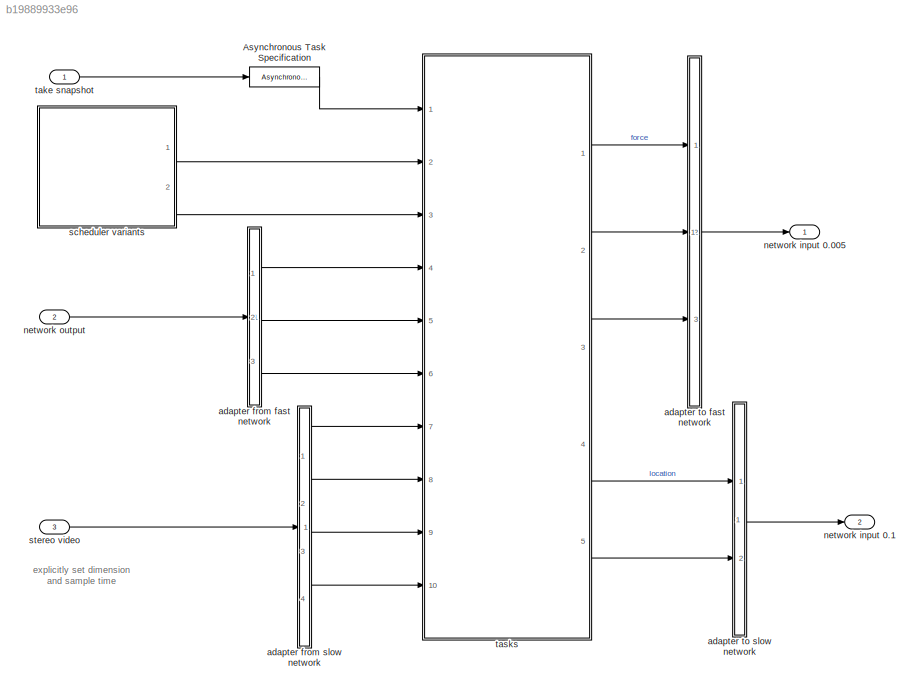
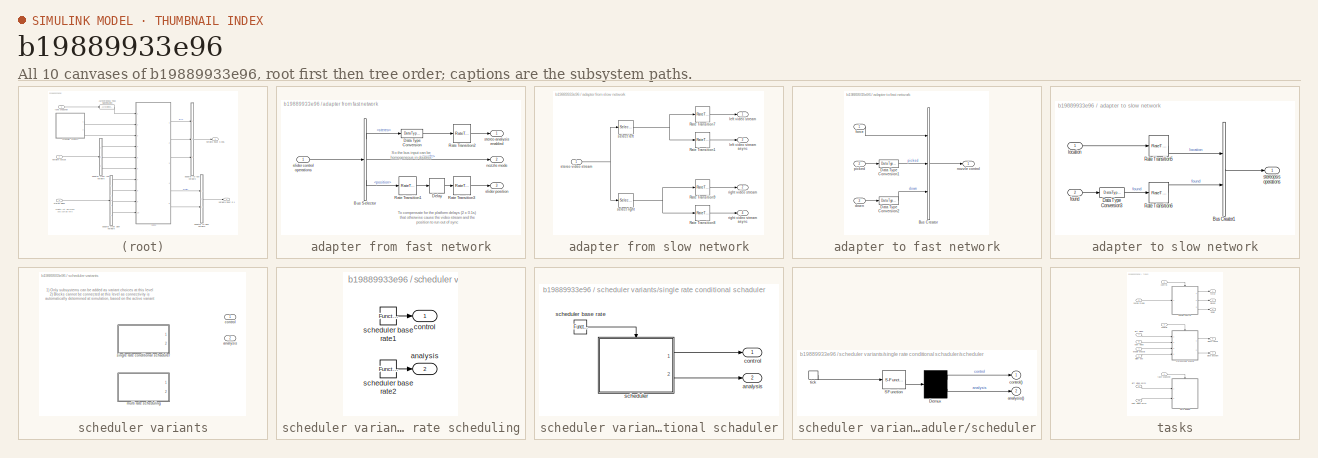
[diagram: thumbnail index - all 10 canvases of the model, root first then tree order]
MODEL slx_b19889933e96
KIND model
WORKSPACE source: MAT-file member
WORKSPACE ini_block_hpos = -0.4
BLOCK [AsynchronousTaskSpecification] Asynchronous Task Specification
  TaskPriority = 5
BLOCK [SubSystem] adapter from fast network
  FunctionWithSeparateData = off
  MaskHideContents = off
  MinAlgLoopOccurrences = off
  Opaque = off
  Ports = [1, 3]
  PropExecContextOutsideSubsystem = off
  RTWSystemCode = Auto
  RequestExecContextInheritance = off
BLOCK [BusSelector] adapter from fast network/Bus Selector
  OutputSignals = stereo,mode,position
  Ports = [1, 3]
BLOCK [DataTypeConversion] adapter from fast network/Data Type Conversion
  OutDataTypeStr = boolean
  RndMeth = Floor
  SaturateOnIntegerOverflow = off
BLOCK [Delay] adapter from fast network/Delay
  InputPortMap = u0
  Ports = [1, 1]
  SampleTime = 0.1
BLOCK [RateTransition] adapter from fast network/Rate Transition1
  Deterministic = off
BLOCK [RateTransition] adapter from fast network/Rate Transition2
  Deterministic = off
BLOCK [RateTransition] adapter from fast network/Rate Transition3
  Deterministic = off
BLOCK [Outport] adapter from fast network/nozzle mode
  IconDisplay = Port number
  Port = 2
BLOCK [Inport] adapter from fast network/slider control operations
  IconDisplay = Port number
BLOCK [Outport] adapter from fast network/slider position
  IconDisplay = Port number
  Port = 3
BLOCK [Outport] adapter from fast network/stereo analysis enabled
  IconDisplay = Port number
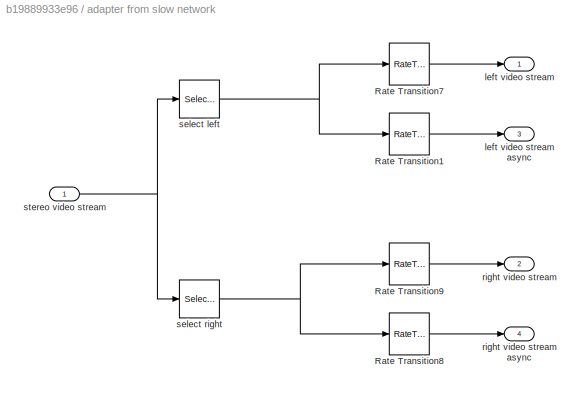
BLOCK [SubSystem] adapter from slow network
  FunctionWithSeparateData = off
  MaskHideContents = off
  MinAlgLoopOccurrences = off
  Opaque = off
  Ports = [1, 4]
  PropExecContextOutsideSubsystem = off
  RTWSystemCode = Auto
  RequestExecContextInheritance = off
BLOCK [RateTransition] adapter from slow network/Rate Transition1
  Deterministic = off
BLOCK [RateTransition] adapter from slow network/Rate Transition7
  Deterministic = off
BLOCK [RateTransition] adapter from slow network/Rate Transition8
  Deterministic = off
BLOCK [RateTransition] adapter from slow network/Rate Transition9
  Deterministic = off
BLOCK [Outport] adapter from slow network/left video stream
  IconDisplay = Port number
BLOCK [Outport] adapter from slow network/left video stream async
  IconDisplay = Port number
  Port = 3
BLOCK [Outport] adapter from slow network/right video stream
  IconDisplay = Port number
  Port = 2
BLOCK [Outport] adapter from slow network/right video stream async
  IconDisplay = Port number
  Port = 4
BLOCK [Selector] adapter from slow network/select left
  IndexOptions = Select all,Select all,Index vector (dialog)
  Indices = [1:400],1,1:3
  InputPortWidth = 3
  NumberOfDimensions = 3
  OutputSizes = 1,1,1
  Ports = [1, 1]
BLOCK [Selector] adapter from slow network/select right
  IndexOptions = Select all,Select all,Index vector (dialog)
  Indices = [1:400],1,4:6
  InputPortWidth = 3
  NumberOfDimensions = 3
  OutputSizes = 1,1,1
  Ports = [1, 1]
BLOCK [Inport] adapter from slow network/stereo video stream
  IconDisplay = Port number
BLOCK [SubSystem] adapter to fast network
  FunctionWithSeparateData = off
  MaskHideContents = off
  MinAlgLoopOccurrences = off
  Opaque = off
  Ports = [3, 1]
  PropExecContextOutsideSubsystem = off
  RTWSystemCode = Auto
  RequestExecContextInheritance = off
BLOCK [BusCreator] adapter to fast network/Bus Creator
  DisplayOption = bar
  Inputs = 3
  Ports = [3, 1]
BLOCK [DataTypeConversion] adapter to fast network/Data Type Conversion1
  OutDataTypeStr = double
  RndMeth = Floor
  SaturateOnIntegerOverflow = off
BLOCK [DataTypeConversion] adapter to fast network/Data Type Conversion2
  OutDataTypeStr = double
  RndMeth = Floor
  SaturateOnIntegerOverflow = off
BLOCK [Inport] adapter to fast network/down
  IconDisplay = Port number
  Port = 3
BLOCK [Inport] adapter to fast network/force
  IconDisplay = Port number
BLOCK [Outport] adapter to fast network/nozzle control
  IconDisplay = Port number
BLOCK [Inport] adapter to fast network/picked
  IconDisplay = Port number
  Port = 2
BLOCK [SubSystem] adapter to slow network
  FunctionWithSeparateData = off
  MaskHideContents = off
  MinAlgLoopOccurrences = off
  Opaque = off
  Ports = [2, 1]
  PropExecContextOutsideSubsystem = off
  RTWSystemCode = Auto
  RequestExecContextInheritance = off
BLOCK [BusCreator] adapter to slow network/Bus Creator1
  DisplayOption = bar
  Inputs = 'location','found'
  OutDataTypeStr = Bus: slBusStereoOps
  Ports = [2, 1]
BLOCK [DataTypeConversion] adapter to slow network/Data Type Conversion3
  OutDataTypeStr = double
  RndMeth = Floor
  SaturateOnIntegerOverflow = off
BLOCK [RateTransition] adapter to slow network/Rate Transition5
  Deterministic = off
  OutPortSampleTime = 0.1
BLOCK [RateTransition] adapter to slow network/Rate Transition6
  Deterministic = off
  OutPortSampleTime = 0.1
BLOCK [Inport] adapter to slow network/found
  IconDisplay = Port number
  Port = 2
BLOCK [Inport] adapter to slow network/location
  IconDisplay = Port number
BLOCK [Outport] adapter to slow network/stereopsis operations
  IconDisplay = Port number
BLOCK [Outport] network input 0.005
  BusOutputAsStruct = on
  IconDisplay = Port number
  OutDataTypeStr = Bus: slBusNozzleControl
BLOCK [Outport] network input 0.1
  BusOutputAsStruct = on
  IconDisplay = Port number
  OutDataTypeStr = Bus: slBusStereoOps
  Port = 2
BLOCK [Inport] network output
  IconDisplay = Port number
  OutDataTypeStr = Bus: slBusSliderControlOps
  Port = 2
BLOCK [SubSystem] scheduler variants
  FunctionWithSeparateData = off
  MaskHideContents = off
  MinAlgLoopOccurrences = off
  Opaque = off
  OverrideUsingVariant = singlerate
  Ports = [0, 2]
  PropExecContextOutsideSubsystem = off
  RTWSystemCode = Auto
  RequestExecContextInheritance = off
  Variant = on
BLOCK [Outport] scheduler variants/analysis
  IconDisplay = Port number
  Port = 2
BLOCK [Outport] scheduler variants/control
  IconDisplay = Port number
BLOCK [SubSystem] scheduler variants/multi rate scheduling
  FunctionWithSeparateData = off
  MaskHideContents = off
  MinAlgLoopOccurrences = off
  Opaque = off
  Ports = [0, 2]
  PropExecContextOutsideSubsystem = off
  RTWSystemCode = Auto
  RequestExecContextInheritance = off
  VariantObject = multirate
BLOCK [Outport] scheduler variants/multi rate scheduling/analysis
  IconDisplay = Port number
  Port = 2
BLOCK [Outport] scheduler variants/multi rate scheduling/control
  IconDisplay = Port number
BLOCK [Reference] scheduler variants/multi rate scheduling/scheduler base rate1  REF=simulink/Ports &
Subsystems/Function-Call
Generator
  Ports = [0, 1]
  SourceBlock = simulink/Ports &\nSubsystems/Function-Call\nGenerator
  SourceType = Function-Call Generator
  numberOfIterations = 1
  sample_time = 0.005
BLOCK [Reference] scheduler variants/multi rate scheduling/scheduler base rate2  REF=simulink/Ports &
Subsystems/Function-Call
Generator
  Ports = [0, 1]
  SourceBlock = simulink/Ports &\nSubsystems/Function-Call\nGenerator
  SourceType = Function-Call Generator
  numberOfIterations = 1
  sample_time = 0.1
BLOCK [SubSystem] scheduler variants/single rate conditional schaduler
  FunctionWithSeparateData = off
  MaskHideContents = off
  MinAlgLoopOccurrences = off
  Opaque = off
  Ports = [0, 2]
  PropExecContextOutsideSubsystem = off
  RTWSystemCode = Auto
  RequestExecContextInheritance = off
  VariantObject = singlerate
BLOCK [Outport] scheduler variants/single rate conditional schaduler/analysis
  IconDisplay = Port number
  Port = 2
BLOCK [Outport] scheduler variants/single rate conditional schaduler/control
  IconDisplay = Port number
BLOCK [SubSystem] scheduler variants/single rate conditional schaduler/scheduler
  ErrorFcn = Stateflow.Translate.translate
  FunctionWithSeparateData = off
  MaskHideContents = off
  MinAlgLoopOccurrences = off
  Opaque = off
  PermitHierarchicalResolution = ExplicitOnly
  Ports = [0, 2, 0, 1]
  PropExecContextOutsideSubsystem = off
  RTWSystemCode = Auto
  RequestExecContextInheritance = off
  SFBlockType = Chart
  TreatAsAtomicUnit = on
BLOCK [Reference] scheduler variants/single rate conditional schaduler/scheduler base rate  REF=simulink/Ports &
Subsystems/Function-Call
Generator
  Ports = [0, 1]
  SourceBlock = simulink/Ports &\nSubsystems/Function-Call\nGenerator
  SourceType = Function-Call Generator
  numberOfIterations = 1
  sample_time = 0.005
BLOCK [Demux] scheduler variants/single rate conditional schaduler/scheduler/ Demux 
  Outputs = 2
  Ports = [1, 2]
BLOCK [S-Function] scheduler variants/single rate conditional schaduler/scheduler/ SFunction 
  EnableBusSupport = on
  FunctionName = sf_sfun
  PortCounts = [1 1]
  Ports = [1, 1]
  Tag = Stateflow S-Function cps_slider_processor_v2 1
BLOCK [Outport] scheduler variants/single rate conditional schaduler/scheduler/analysis()
  IconDisplay = Port number
  Port = 2
BLOCK [Outport] scheduler variants/single rate conditional schaduler/scheduler/control()
  IconDisplay = Port number
BLOCK [TriggerPort] scheduler variants/single rate conditional schaduler/scheduler/tick
  Ports = [0, 1]
  ShowOutputPort = on
  StatesWhenEnabling = held
  TriggerType = function-call
BLOCK [Inport] stereo video
  IconDisplay = Port number
  Port = 3
  PortDimensions = [400 240 6]
  SampleTime = 0.1
BLOCK [Inport] take snapshot
  IconDisplay = Port number
  OutputFunctionCall = on
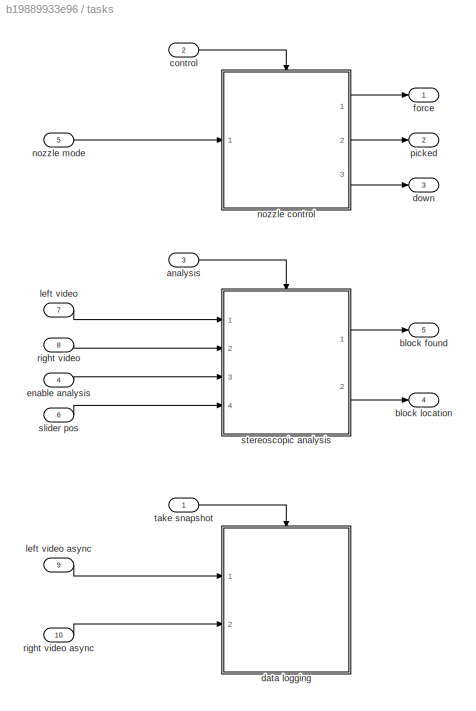
BLOCK [SubSystem] tasks
  FunctionWithSeparateData = off
  MaskHideContents = off
  MinAlgLoopOccurrences = off
  Opaque = off
  Ports = [10, 5]
  PropExecContextOutsideSubsystem = off
  RTWSystemCode = Auto
  RequestExecContextInheritance = off
BLOCK [Inport] tasks/analysis
  IconDisplay = Port number
  Port = 3
BLOCK [Outport] tasks/block found
  IconDisplay = Port number
  Port = 5
BLOCK [Outport] tasks/block location
  IconDisplay = Port number
  Port = 4
BLOCK [Inport] tasks/control
  IconDisplay = Port number
  Port = 2
BLOCK [ModelReference] tasks/data logging
  CopyOfModelName = cps_log_video_v2
  DefaultDataLogging = on
  ModelNameDialog = cps_log_video_v2
  ModelReferenceVersion = 1.564
  Ports = [2, 0, 0, 1]
  TriggerPortName = function
  TriggerPortStatesWhenEnabling = held
  TriggerPortTriggerType = function-call
BLOCK [Outport] tasks/down
  IconDisplay = Port number
  Port = 3
BLOCK [Inport] tasks/enable analysis
  IconDisplay = Port number
  Port = 4
BLOCK [Outport] tasks/force
  IconDisplay = Port number
BLOCK [Inport] tasks/left video
  IconDisplay = Port number
  Port = 7
BLOCK [Inport] tasks/left video async
  IconDisplay = Port number
  Port = 9
BLOCK [ModelReference] tasks/nozzle control
  CopyOfModelName = cps_nozzle_control_v2
  DefaultDataLogging = on
  ModelNameDialog = cps_nozzle_control_v2
  ModelReferenceVersion = 1.159
  Ports = [1, 3, 0, 1]
  TriggerPortName = f()
  TriggerPortStatesWhenEnabling = held
  TriggerPortTriggerType = function-call
BLOCK [Inport] tasks/nozzle mode
  IconDisplay = Port number
  Port = 5
BLOCK [Outport] tasks/picked
  IconDisplay = Port number
  Port = 2
BLOCK [Inport] tasks/right video
  IconDisplay = Port number
  Port = 8
BLOCK [Inport] tasks/right video async
  IconDisplay = Port number
  Port = 10
BLOCK [Inport] tasks/slider pos
  IconDisplay = Port number
  Port = 6
BLOCK [ModelReference] tasks/stereoscopic analysis
  AttributesFormatString = %<ActiveVariant>
  CopyOfModelName = cps_stereo_analysis_v2
  DefaultDataLogging = on
  ModelNameDialog = cps_stereo_analysis_v2
  ModelReferenceVersion = 1.204
  Ports = [4, 2, 0, 1]
  TriggerPortName = f()
  TriggerPortStatesWhenEnabling = held
  TriggerPortTriggerType = function-call
  Variant = on
BLOCK [Inport] tasks/take snapshot
  IconDisplay = Port number
  OutputFunctionCall = on
ANNOTATION (root): explicitly set dimension and sample time
ANNOTATION adapter from fast network: So the bus input can be homogeneous in doubles
ANNOTATION adapter from fast network: To compensate for the platform delays (2 x 0.1s) that otherwise cause the video stream and the position to run out of sync
ANNOTATION scheduler variants: 1) Only subsystems can be added as variant choices at this level 2) Blocks cannot be connected at this level as connectivity is automatically determined at simulation, based on the active variant
LINE Asynchronous Task Specification:1 -> tasks:1
LINE adapter from fast network/Bus Selector:1 -> adapter from fast network/Data Type Conversion:1
LINE adapter from fast network/Bus Selector:2 -> adapter from fast network/nozzle mode:1
LINE adapter from fast network/Bus Selector:3 -> adapter from fast network/Rate Transition1:1
LINE adapter from fast network/Data Type Conversion:1 -> adapter from fast network/Rate Transition2:1
LINE adapter from fast network/Delay:1 -> adapter from fast network/Rate Transition3:1
LINE adapter from fast network/Rate Transition1:1 -> adapter from fast network/Delay:1
LINE adapter from fast network/Rate Transition2:1 -> adapter from fast network/stereo analysis enabled:1
LINE adapter from fast network/Rate Transition3:1 -> adapter from fast network/slider position:1
LINE adapter from fast network/slider control operations:1 -> adapter from fast network/Bus Selector:1
LINE adapter from fast network:1 -> tasks:4
LINE adapter from fast network:2 -> tasks:5
LINE adapter from fast network:3 -> tasks:6
LINE adapter from slow network/Rate Transition1:1 -> adapter from slow network/left video stream async:1
LINE adapter from slow network/Rate Transition7:1 -> adapter from slow network/left video stream:1
LINE adapter from slow network/Rate Transition8:1 -> adapter from slow network/right video stream async:1
LINE adapter from slow network/Rate Transition9:1 -> adapter from slow network/right video stream:1
NET adapter from slow network/select left:1 -> adapter from slow network/Rate Transition1:1, adapter from slow network/Rate Transition7:1
NET adapter from slow network/select right:1 -> adapter from slow network/Rate Transition8:1, adapter from slow network/Rate Transition9:1
NET adapter from slow network/stereo video stream:1 -> adapter from slow network/select left:1, adapter from slow network/select right:1
LINE adapter from slow network:1 -> tasks:7
LINE adapter from slow network:2 -> tasks:8
LINE adapter from slow network:3 -> tasks:9
LINE adapter from slow network:4 -> tasks:10
LINE adapter to fast network/Bus Creator:1 -> adapter to fast network/nozzle control:1
LINE adapter to fast network/Data Type Conversion1:1 -> adapter to fast network/Bus Creator:2
LINE adapter to fast network/Data Type Conversion2:1 -> adapter to fast network/Bus Creator:3
LINE adapter to fast network/down:1 -> adapter to fast network/Data Type Conversion2:1
LINE adapter to fast network/force:1 -> adapter to fast network/Bus Creator:1
LINE adapter to fast network/picked:1 -> adapter to fast network/Data Type Conversion1:1
LINE adapter to fast network:1 -> network input 0.005:1
LINE adapter to slow network/Bus Creator1:1 -> adapter to slow network/stereopsis operations:1
LINE adapter to slow network/Data Type Conversion3:1 -> adapter to slow network/Rate Transition6:1
LINE adapter to slow network/Rate Transition5:1 -> adapter to slow network/Bus Creator1:1
LINE adapter to slow network/Rate Transition6:1 -> adapter to slow network/Bus Creator1:2
LINE adapter to slow network/found:1 -> adapter to slow network/Data Type Conversion3:1
LINE adapter to slow network/location:1 -> adapter to slow network/Rate Transition5:1
LINE adapter to slow network:1 -> network input 0.1:1
LINE network output:1 -> adapter from fast network:1
LINE scheduler variants/multi rate scheduling/scheduler base rate1:1 -> scheduler variants/multi rate scheduling/control:1
LINE scheduler variants/multi rate scheduling/scheduler base rate2:1 -> scheduler variants/multi rate scheduling/analysis:1
LINE scheduler variants/single rate conditional schaduler/scheduler base rate:1 -> scheduler variants/single rate conditional schaduler/scheduler:trigger
LINE scheduler variants/single rate conditional schaduler/scheduler:1 -> scheduler variants/single rate conditional schaduler/control:1
LINE scheduler variants/single rate conditional schaduler/scheduler:2 -> scheduler variants/single rate conditional schaduler/analysis:1
LINE scheduler variants:1 -> tasks:2
LINE scheduler variants:2 -> tasks:3
LINE stereo video:1 -> adapter from slow network:1
LINE take snapshot:1 -> Asynchronous Task Specification:1
LINE tasks/analysis:1 -> tasks/stereoscopic analysis:trigger
LINE tasks/control:1 -> tasks/nozzle control:trigger
LINE tasks/enable analysis:1 -> tasks/stereoscopic analysis:3
LINE tasks/left video async:1 -> tasks/data logging:1
LINE tasks/left video:1 -> tasks/stereoscopic analysis:1
LINE tasks/nozzle control:1 -> tasks/force:1
LINE tasks/nozzle control:2 -> tasks/picked:1
LINE tasks/nozzle control:3 -> tasks/down:1
LINE tasks/nozzle mode:1 -> tasks/nozzle control:1
LINE tasks/right video async:1 -> tasks/data logging:2
LINE tasks/right video:1 -> tasks/stereoscopic analysis:2
LINE tasks/slider pos:1 -> tasks/stereoscopic analysis:4
LINE tasks/stereoscopic analysis:1 -> tasks/block found:1
LINE tasks/stereoscopic analysis:2 -> tasks/block location:1
LINE tasks/take snapshot:1 -> tasks/data logging:trigger
LINE tasks:1 -> adapter to fast network:1
LINE tasks:2 -> adapter to fast network:2
LINE tasks:3 -> adapter to fast network:3
LINE tasks:4 -> adapter to slow network:1
LINE tasks:5 -> adapter to slow network:2
note: NET lines group one-source signal fan-out (src -> all destinations, sorted); 1:1 wires keep LINE
